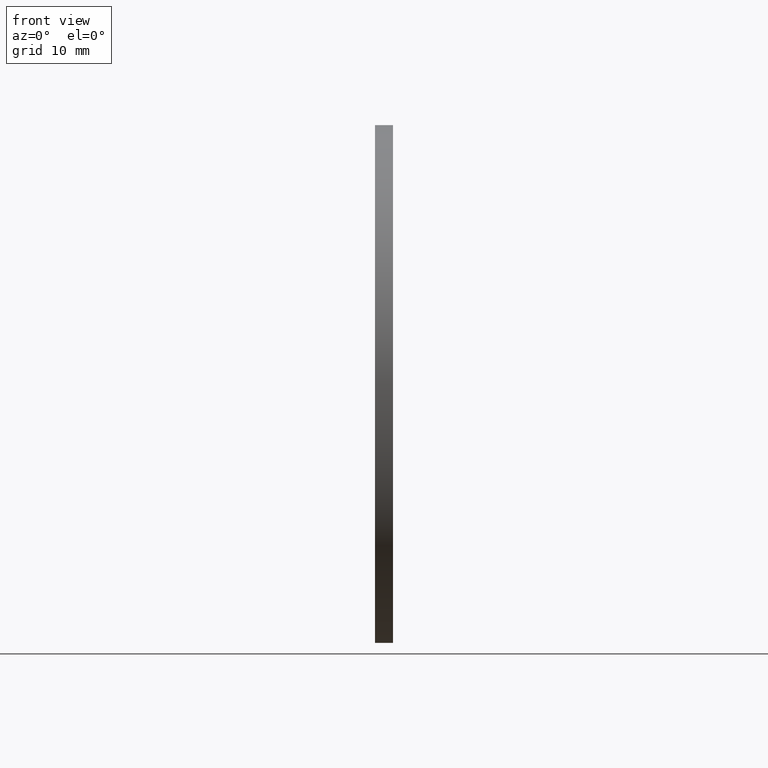
[diagram: clean part render]
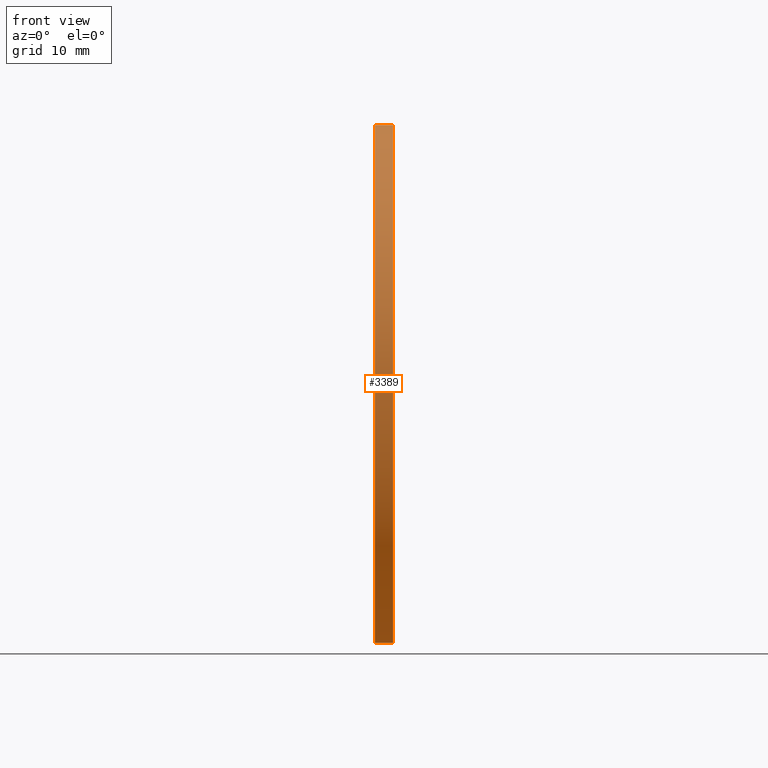
[diagram: same view with one face highlighted and labeled with its STEP entity id]
A machine part, front view. The second image highlights one B-rep face of the part: STEP entity #3389.
In plain terms, the highlighted cylindrical surface (partial cylindrical patch) has radius 31.5 mm, axis along (1, -0, -0).
Its self-contained STEP definition (entity closure, byte-faithful):
#108 = CARTESIAN_POINT ( 'NONE',  ( 0.2502733699999998840, 0.0000000000000000000, -31.50000000000000000 ) ) ;
#119 = EDGE_CURVE ( 'NONE', #2843, #2560, #1277, .T. ) ;
#149 = VERTEX_POINT ( 'NONE', #2379 ) ;
#305 = DIRECTION ( 'NONE',  ( 1.000000000000000000, -0.0000000000000000000, -0.0000000000000000000 ) ) ;
#356 = EDGE_CURVE ( 'NONE', #660, #2560, #946, .T. ) ;
#513 = AXIS2_PLACEMENT_3D ( 'NONE', #2720, #3343, #1199 ) ;
#564 = ORIENTED_EDGE ( 'NONE', *, *, #119, .F. ) ;
#586 = CARTESIAN_POINT ( 'NONE',  ( -1.949726630000000682, 0.0000000000000000000, -31.50000000000000000 ) ) ;
#623 = EDGE_CURVE ( 'NONE', #149, #2843, #1297, .T. ) ;
#660 = VERTEX_POINT ( 'NONE', #586 ) ;
#946 = LINE ( 'NONE', #2911, #2407 ) ;
#1066 = CARTESIAN_POINT ( 'NONE',  ( -1.949726630000000682, 0.0000000000000000000, 0.0000000000000000000 ) ) ;
#1199 = DIRECTION ( 'NONE',  ( 0.0000000000000000000, 0.0000000000000000000, -1.000000000000000000 ) ) ;
#1277 = CIRCLE ( 'NONE', #513, 31.50000000000000000 ) ;
#1297 = LINE ( 'NONE', #2099, #3243 ) ;
#1406 = ORIENTED_EDGE ( 'NONE', *, *, #623, .F. ) ;
#1571 = CARTESIAN_POINT ( 'NONE',  ( 12.05951420477982516, 0.0000000000000000000, 0.0000000000000000000 ) ) ;
#1581 = CIRCLE ( 'NONE', #1664, 31.50000000000000000 ) ;
#1664 = AXIS2_PLACEMENT_3D ( 'NONE', #1066, #3499, #1965 ) ;
#1808 = EDGE_CURVE ( 'NONE', #149, #660, #1581, .T. ) ;
#1965 = DIRECTION ( 'NONE',  ( 0.0000000000000000000, 0.0000000000000000000, -1.000000000000000000 ) ) ;
#2066 = ORIENTED_EDGE ( 'NONE', *, *, #1808, .T. ) ;
#2099 = CARTESIAN_POINT ( 'NONE',  ( 12.05951420477982516, 3.857637417314162689E-15, 31.50000000000000000 ) ) ;
#2206 = DIRECTION ( 'NONE',  ( 1.000000000000000000, -0.0000000000000000000, -0.0000000000000000000 ) ) ;
#2236 = CARTESIAN_POINT ( 'NONE',  ( 0.2502733699999998840, 3.857637417314162689E-15, 31.50000000000000000 ) ) ;
#2281 = DIRECTION ( 'NONE',  ( 0.0000000000000000000, 0.0000000000000000000, -1.000000000000000000 ) ) ;
#2354 = CYLINDRICAL_SURFACE ( 'NONE', #2427, 31.50000000000000000 ) ;
#2366 = EDGE_LOOP ( 'NONE', ( #1406, #2066, #2957, #564 ) ) ;
#2379 = CARTESIAN_POINT ( 'NONE',  ( -1.949726630000000682, 3.857637417314162689E-15, 31.50000000000000000 ) ) ;
#2407 = VECTOR ( 'NONE', #2206, 1000.000000000000000 ) ;
#2427 = AXIS2_PLACEMENT_3D ( 'NONE', #1571, #2832, #2281 ) ;
#2457 = FACE_OUTER_BOUND ( 'NONE', #2366, .T. ) ;
#2560 = VERTEX_POINT ( 'NONE', #108 ) ;
#2720 = CARTESIAN_POINT ( 'NONE',  ( 0.2502733699999998840, 0.0000000000000000000, 0.0000000000000000000 ) ) ;
#2832 = DIRECTION ( 'NONE',  ( 1.000000000000000000, -0.0000000000000000000, -0.0000000000000000000 ) ) ;
#2843 = VERTEX_POINT ( 'NONE', #2236 ) ;
#2911 = CARTESIAN_POINT ( 'NONE',  ( 12.05951420477982516, 0.0000000000000000000, -31.50000000000000000 ) ) ;
#2957 = ORIENTED_EDGE ( 'NONE', *, *, #356, .T. ) ;
#3243 = VECTOR ( 'NONE', #305, 1000.000000000000000 ) ;
#3343 = DIRECTION ( 'NONE',  ( 1.000000000000000000, -0.0000000000000000000, -0.0000000000000000000 ) ) ;
#3389 = ADVANCED_FACE ( 'NONE', ( #2457 ), #2354, .T. ) ;
#3499 = DIRECTION ( 'NONE',  ( 1.000000000000000000, -0.0000000000000000000, -0.0000000000000000000 ) ) ;